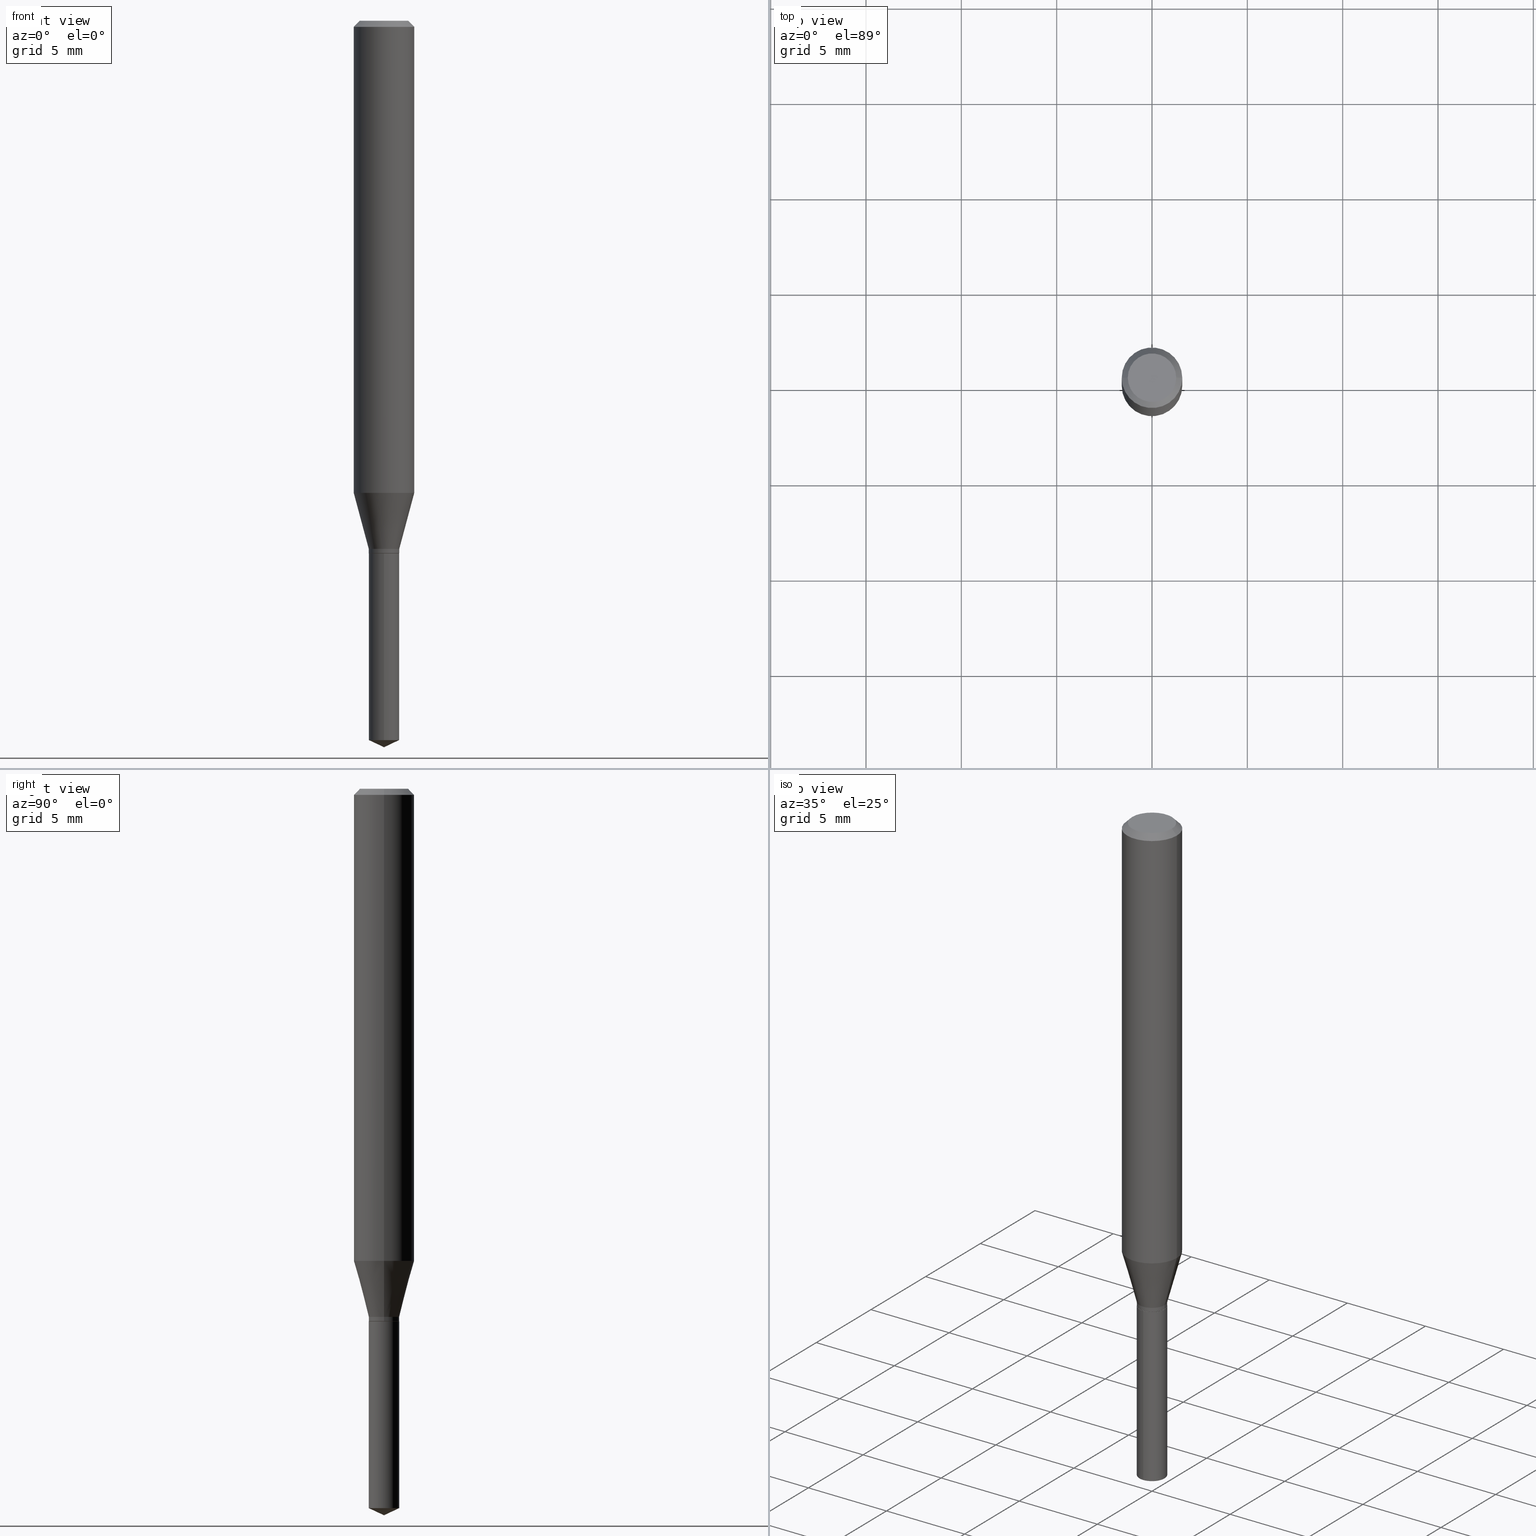
[diagram: canonical four-view strip — front | top / right | iso, engineering-drawing reading convention]
A machine part, canonical four-view strip (front | top / right | iso — engineering-drawing reading convention). The complete STEP part file that produces these views, byte-faithful:
ISO-10303-21;
HEADER;
FILE_DESCRIPTION (( 'STEP AP203' ),
    '1' );
FILE_NAME ('07342.STEP',
    '2024-04-23T20:35:25',
    ( '' ),
    ( '' ),
    'SwSTEP 2.0',
    'SolidWorks 2023',
    '' );
FILE_SCHEMA (( 'CONFIG_CONTROL_DESIGN' ));
ENDSEC;

DATA;
#1 = EDGE_CURVE ( 'NONE', #366, #151, #197, .T. ) ;
#2 = LINE ( 'NONE', #8, #445 ) ;
#3 = ORIENTED_EDGE ( 'NONE', *, *, #455, .F. ) ;
#4 = VECTOR ( 'NONE', #240, 39.37007874015748854 ) ;
#5 = AXIS2_PLACEMENT_3D ( 'NONE', #487, #407, #261 ) ;
#6 = DIRECTION ( 'NONE',  ( -2.445468806185136597E-29, 3.491481338843145583E-15, 1.000000000000000000 ) ) ;
#7 = ORIENTED_EDGE ( 'NONE', *, *, #394, .T. ) ;
#8 = CARTESIAN_POINT ( 'NONE',  ( -2.199633243470904924E-16, -0.03150000000000384437, -1.099999999999999867 ) ) ;
#9 = VERTEX_POINT ( 'NONE', #385 ) ;
#10 = ORIENTED_EDGE ( 'NONE', *, *, #463, .F. ) ;
#11 = CONICAL_SURFACE ( 'NONE', #159, 0.06250000000000000000, 0.7853981633974449483 ) ;
#12 = CONICAL_SURFACE ( 'NONE', #13, 0.03099999999999999978, 0.7853981633974141952 ) ;
#13 = AXIS2_PLACEMENT_3D ( 'NONE', #34, #118, #300 ) ;
#14 = DIRECTION ( 'NONE',  ( 1.000000000000000000, -6.982962677686267499E-15, 4.876176775795936353E-29 ) ) ;
#15 = CYLINDRICAL_SURFACE ( 'NONE', #94, 0.03150000000000000022 ) ;
#16 = ORIENTED_EDGE ( 'NONE', *, *, #1, .F. ) ;
#17 = FACE_OUTER_BOUND ( 'NONE', #292, .T. ) ;
#18 = CC_DESIGN_APPROVAL ( #111, ( #373 ) ) ;
#19 = DIRECTION ( 'NONE',  ( 1.000000000000000000, 0.000000000000000000, 0.000000000000000000 ) ) ;
#20 = FACE_OUTER_BOUND ( 'NONE', #270, .T. ) ;
#21 = CARTESIAN_POINT ( 'NONE',  ( 3.668099535622682155E-29, -5.237370474839448718E-15, -1.500000000000000222 ) ) ;
#22 = CC_DESIGN_PERSON_AND_ORGANIZATION_ASSIGNMENT ( #26, #437, ( #288 ) ) ;
#23 = LINE ( 'NONE', #468, #342 ) ;
#24 = FACE_OUTER_BOUND ( 'NONE', #339, .T. ) ;
#25 = AXIS2_PLACEMENT_3D ( 'NONE', #187, #360, #181 ) ;
#26 = PERSON_AND_ORGANIZATION ( #417, #232 ) ;
#27 = CARTESIAN_POINT ( 'NONE',  ( 3.056836007731442729E-31, -4.364351673553962300E-17, -0.01250000000000008916 ) ) ;
#28 = VERTEX_POINT ( 'NONE', #418 ) ;
#29 = CALENDAR_DATE ( 2024, 23, 4 ) ;
#30 = CARTESIAN_POINT ( 'NONE',  ( 0.06250000000000000000, -4.800786840909313294E-16, -0.01250000000000008916 ) ) ;
#31 = FACE_OUTER_BOUND ( 'NONE', #368, .T. ) ;
#32 = EDGE_LOOP ( 'NONE', ( #46, #255, #442, #444 ) ) ;
#33 = APPROVAL_PERSON_ORGANIZATION ( #100, #450, #323 ) ;
#34 = CARTESIAN_POINT ( 'NONE',  ( 2.690015686803650369E-29, -3.840629472727460101E-15, -1.100000000000000089 ) ) ;
#35 = EDGE_LOOP ( 'NONE', ( #266, #415, #7, #48 ) ) ;
#36 = ADVANCED_FACE ( 'NONE', ( #461 ), #163, .T. ) ;
#37 = CARTESIAN_POINT ( 'NONE',  ( -0.04999999999999999584, 3.709698922520826725E-16, -1.592040838894077649E-18 ) ) ;
#38 = VERTEX_POINT ( 'NONE', #303 ) ;
#39 = ADVANCED_FACE ( 'NONE', ( #306 ), #202, .T. ) ;
#40 = DIRECTION ( 'NONE',  ( 1.000000000000000000, -6.982962677686270655E-15, 0.000000000000000000 ) ) ;
#41 = ORIENTED_EDGE ( 'NONE', *, *, #316, .F. ) ;
#42 = LOCAL_TIME ( 16, 35, 25.00000000000000000, #470 ) ;
#43 = CARTESIAN_POINT ( 'NONE',  ( 0.06250000000000005551, -4.364351673553921131E-16, 3.047610484872463023E-30 ) ) ;
#44 = ORIENTED_EDGE ( 'NONE', *, *, #463, .T. ) ;
#45 = DATE_TIME_ROLE ( 'creation_date' ) ;
#46 = ORIENTED_EDGE ( 'NONE', *, *, #371, .F. ) ;
#47 = PERSON_AND_ORGANIZATION_ROLE ( 'design_owner' ) ;
#48 = ORIENTED_EDGE ( 'NONE', *, *, #174, .F. ) ;
#49 = CIRCLE ( 'NONE', #144, 0.06250000000000012490 ) ;
#50 = VERTEX_POINT ( 'NONE', #462 ) ;
#51 = ADVANCED_FACE ( 'NONE', ( #84 ), #198, .F. ) ;
#52 = ORIENTED_EDGE ( 'NONE', *, *, #482, .T. ) ;
#53 = CC_DESIGN_PERSON_AND_ORGANIZATION_ASSIGNMENT ( #165, #133, ( #413 ) ) ;
#54 = DIRECTION ( 'NONE',  ( -2.445468806185136597E-29, 3.491481338843145583E-15, 1.000000000000000000 ) ) ;
#55 = CARTESIAN_POINT ( 'NONE',  ( -0.03150000000000000022, -3.599351104268813703E-15, -1.099499999999999922 ) ) ;
#56 = CIRCLE ( 'NONE', #182, 0.06250000000000000000 ) ;
#57 = DIRECTION ( 'NONE',  ( 1.000000000000000000, -6.982962677686266711E-15, 0.000000000000000000 ) ) ;
#58 = MANIFOLD_SOLID_BREP ( 'Body-Move/Copy2[1]', #396 ) ;
#59 = CARTESIAN_POINT ( 'NONE',  ( 2.690015686803650369E-29, -3.840629472727460101E-15, -1.100000000000000089 ) ) ;
#60 = APPROVAL_ROLE ( '' ) ;
#61 = CARTESIAN_POINT ( 'NONE',  ( 0.000000000000000000, 0.000000000000000000, 0.000000000000000000 ) ) ;
#62 = DIRECTION ( 'NONE',  ( -2.445399690415121530E-29, 3.491580316559632610E-15, 1.000000000000000000 ) ) ;
#63 = AXIS2_PLACEMENT_3D ( 'NONE', #98, #395, #435 ) ;
#64 = VECTOR ( 'NONE', #369, 39.37007874015748143 ) ;
#65 = ADVANCED_FACE ( 'NONE', ( #420 ), #485, .T. ) ;
#66 = CARTESIAN_POINT ( 'NONE',  ( -0.03150000000000000022, -3.599351104268813703E-15, -1.090500000000000247 ) ) ;
#67 = APPROVAL_DATE_TIME ( #213, #450 ) ;
#68 = FACE_OUTER_BOUND ( 'NONE', #488, .T. ) ;
#69 = DIRECTION ( 'NONE',  ( -2.445399690415121530E-29, 3.491580316559632610E-15, 1.000000000000000000 ) ) ;
#70 = EDGE_CURVE ( 'NONE', #74, #50, #271, .T. ) ;
#71 = ORIENTED_EDGE ( 'NONE', *, *, #307, .F. ) ;
#72 = AXIS2_PLACEMENT_3D ( 'NONE', #402, #69, #372 ) ;
#73 = DIRECTION ( 'NONE',  ( 1.000000000000000000, -6.982962677686270655E-15, 0.000000000000000000 ) ) ;
#74 = VERTEX_POINT ( 'NONE', #129 ) ;
#75 = ADVANCED_FACE ( 'NONE', ( #419 ), #15, .T. ) ;
#76 = CARTESIAN_POINT ( 'NONE',  ( 3.056836007731442729E-31, -4.364351673553962300E-17, -0.01250000000000008916 ) ) ;
#77 = ORIENTED_EDGE ( 'NONE', *, *, #85, .T. ) ;
#78 = CARTESIAN_POINT ( 'NONE',  ( 3.893286209682126177E-47, -5.558580879666067980E-33, -1.592040838891559689E-18 ) ) ;
#79 = ORIENTED_EDGE ( 'NONE', *, *, #174, .T. ) ;
#80 = EDGE_CURVE ( 'NONE', #238, #28, #427, .T. ) ;
#81 = VECTOR ( 'NONE', #135, 39.37007874015748143 ) ;
#82 = APPROVAL_STATUS ( 'not_yet_approved' ) ;
#83 = EDGE_LOOP ( 'NONE', ( #299, #86, #454 ) ) ;
#84 = FACE_OUTER_BOUND ( 'NONE', #117, .T. ) ;
#85 = EDGE_CURVE ( 'NONE', #154, #151, #87, .T. ) ;
#86 = ORIENTED_EDGE ( 'NONE', *, *, #70, .T. ) ;
#87 = CIRCLE ( 'NONE', #166, 0.03150000000000000022 ) ;
#88 = DIRECTION ( 'NONE',  ( 1.000000000000000000, -6.982962677686265922E-15, 4.876176775795936353E-29 ) ) ;
#89 = CC_DESIGN_PERSON_AND_ORGANIZATION_ASSIGNMENT ( #475, #179, ( #373 ) ) ;
#90 = DIRECTION ( 'NONE',  ( 1.000000000000000000, -6.982962677686265922E-15, 4.876176775795936353E-29 ) ) ;
#91 = EDGE_LOOP ( 'NONE', ( #107, #110, #448, #260 ) ) ;
#92 = PERSON_AND_ORGANIZATION ( #417, #232 ) ;
#93 = ADVANCED_FACE ( 'NONE', ( #17 ), #11, .T. ) ;
#94 = AXIS2_PLACEMENT_3D ( 'NONE', #131, #203, #90 ) ;
#95 = FACE_OUTER_BOUND ( 'NONE', #190, .T. ) ;
#96 = LOCAL_TIME ( 16, 35, 25.00000000000000000, #434 ) ;
#97 = CALENDAR_DATE ( 2024, 23, 4 ) ;
#98 = CARTESIAN_POINT ( 'NONE',  ( 3.893286209682126177E-47, -5.558580879666067980E-33, -1.592040838891559689E-18 ) ) ;
#99 = DIRECTION ( 'NONE',  ( -6.982962677686266711E-15, -1.000000000000000000, 3.520397390770453475E-15 ) ) ;
#100 = PERSON_AND_ORGANIZATION ( #417, #232 ) ;
#101 = LINE ( 'NONE', #359, #287 ) ;
#102 = ADVANCED_BREP_SHAPE_REPRESENTATION ( '07342', ( #58, #347, #192 ), #348 ) ;
#103 = ORIENTED_EDGE ( 'NONE', *, *, #227, .F. ) ;
#104 = CIRCLE ( 'NONE', #430, 0.03150000000000000022 ) ;
#105 = CC_DESIGN_DATE_AND_TIME_ASSIGNMENT ( #252, #399, ( #288 ) ) ;
#106 = CARTESIAN_POINT ( 'NONE',  ( 2.238209617644679463E-16, 0.03149999999999615607, -1.100000000000000089 ) ) ;
#107 = ORIENTED_EDGE ( 'NONE', *, *, #471, .F. ) ;
#108 = EDGE_CURVE ( 'NONE', #28, #366, #285, .T. ) ;
#109 = CARTESIAN_POINT ( 'NONE',  ( -0.03150000000000000022, 2.238209617644315601E-16, -1.549464553430295327E-30 ) ) ;
#110 = ORIENTED_EDGE ( 'NONE', *, *, #80, .T. ) ;
#111 = APPROVAL ( #338, 'UNSPECIFIED' ) ;
#112 = DIRECTION ( 'NONE',  ( -2.445468806185136597E-29, 3.491481338843145583E-15, 1.000000000000000000 ) ) ;
#113 = ORIENTED_EDGE ( 'NONE', *, *, #361, .T. ) ;
#114 = CIRCLE ( 'NONE', #333, 0.03150000000000000022 ) ;
#115 = VECTOR ( 'NONE', #367, 39.37007874015748143 ) ;
#116 = LINE ( 'NONE', #43, #64 ) ;
#117 = EDGE_LOOP ( 'NONE', ( #41, #223 ) ) ;
#118 = DIRECTION ( 'NONE',  ( -2.445468806185136597E-29, 3.491481338843145583E-15, 1.000000000000000000 ) ) ;
#119 = ORIENTED_EDGE ( 'NONE', *, *, #125, .T. ) ;
#120 = CARTESIAN_POINT ( 'NONE',  ( 1.946643104841063088E-47, -2.779290439833033990E-33, -7.960204194457798443E-19 ) ) ;
#121 = VERTEX_POINT ( 'NONE', #30 ) ;
#122 = CONICAL_SURFACE ( 'NONE', #334, 0.03150000000000000022, 0.2617993877991499074 ) ;
#123 = CALENDAR_DATE ( 2024, 23, 4 ) ;
#124 = DIRECTION ( 'NONE',  ( -2.445468806185136597E-29, 3.491481338843145583E-15, 1.000000000000000000 ) ) ;
#125 = EDGE_CURVE ( 'NONE', #379, #9, #473, .T. ) ;
#126 = DIRECTION ( 'NONE',  ( -2.445468806185136597E-29, 3.491481338843145583E-15, 1.000000000000000000 ) ) ;
#127 = ORIENTED_EDGE ( 'NONE', *, *, #431, .T. ) ;
#128 = AXIS2_PLACEMENT_3D ( 'NONE', #247, #62, #99 ) ;
#129 = CARTESIAN_POINT ( 'NONE',  ( 3.668099535622682715E-29, -5.237370474839449507E-15, -1.500000000000000222 ) ) ;
#130 = FACE_OUTER_BOUND ( 'NONE', #186, .T. ) ;
#131 = CARTESIAN_POINT ( 'NONE',  ( 0.000000000000000000, 0.000000000000000000, 0.000000000000000000 ) ) ;
#132 = EDGE_CURVE ( 'NONE', #74, #335, #141, .T. ) ;
#133 = PERSON_AND_ORGANIZATION_ROLE ( 'creator' ) ;
#134 = DIRECTION ( 'NONE',  ( -6.982962677686265922E-15, -1.000000000000000000, 4.336266656609941617E-15 ) ) ;
#135 = DIRECTION ( 'NONE',  ( 0.7071067811865451302, -7.319954787623248157E-15, -0.7071067811865499042 ) ) ;
#136 = SHAPE_DEFINITION_REPRESENTATION ( #357, #102 ) ;
#137 = ADVANCED_FACE ( 'NONE', ( #95 ), #258, .T. ) ;
#138 = DIRECTION ( 'NONE',  ( 0.7071067811865232589, -2.468850131082003836E-15, 0.7071067811865715536 ) ) ;
#139 = DIRECTION ( 'NONE',  ( 2.445468806185136597E-29, -3.491481338843145583E-15, -1.000000000000000000 ) ) ;
#140 = EDGE_CURVE ( 'NONE', #183, #408, #362, .T. ) ;
#141 = LINE ( 'NONE', #21, #191 ) ;
#142 = CIRCLE ( 'NONE', #405, 0.06250000000000000000 ) ;
#143 = ORIENTED_EDGE ( 'NONE', *, *, #302, .T. ) ;
#144 = AXIS2_PLACEMENT_3D ( 'NONE', #253, #6, #325 ) ;
#145 = PERSON_AND_ORGANIZATION ( #417, #232 ) ;
#146 = DIRECTION ( 'NONE',  ( -2.445468806185136597E-29, 3.491481338843145583E-15, 1.000000000000000000 ) ) ;
#147 = ORIENTED_EDGE ( 'NONE', *, *, #125, .F. ) ;
#148 = DIRECTION ( 'NONE',  ( 2.445468806185136597E-29, -3.491481338843145583E-15, -1.000000000000000000 ) ) ;
#149 = ORIENTED_EDGE ( 'NONE', *, *, #431, .F. ) ;
#150 = CARTESIAN_POINT ( 'NONE',  ( -2.199633243470810507E-16, -0.03150000000000519051, -1.485311308768117788 ) ) ;
#151 = VERTEX_POINT ( 'NONE', #472 ) ;
#152 = VECTOR ( 'NONE', #352, 39.37007874015748854 ) ;
#153 = CARTESIAN_POINT ( 'NONE',  ( 2.666783733144892185E-29, -3.807460400008450745E-15, -1.090500000000000247 ) ) ;
#154 = VERTEX_POINT ( 'NONE', #66 ) ;
#155 = DIRECTION ( 'NONE',  ( 1.000000000000000000, -6.982962677686270655E-15, 0.000000000000000000 ) ) ;
#156 = ORIENTED_EDGE ( 'NONE', *, *, #210, .F. ) ;
#157 = APPROVAL_ROLE ( '' ) ;
#158 = CARTESIAN_POINT ( 'NONE',  ( 0.03150000000000000022, -2.199633243471173876E-16, 1.535995684375719887E-30 ) ) ;
#159 = AXIS2_PLACEMENT_3D ( 'NONE', #27, #139, #207 ) ;
#160 = CIRCLE ( 'NONE', #319, 0.03150000000000000022 ) ;
#161 = CC_DESIGN_APPROVAL ( #450, ( #288 ) ) ;
#162 = DIRECTION ( 'NONE',  ( -2.445468806185136597E-29, 3.491481338843145583E-15, 1.000000000000000000 ) ) ;
#163 = CYLINDRICAL_SURFACE ( 'NONE', #388, 0.06250000000000005551 ) ;
#164 = CARTESIAN_POINT ( 'NONE',  ( 0.000000000000000000, 0.000000000000000000, 0.000000000000000000 ) ) ;
#165 = PERSON_AND_ORGANIZATION ( #417, #232 ) ;
#166 = AXIS2_PLACEMENT_3D ( 'NONE', #204, #162, #346 ) ;
#167 = AXIS2_PLACEMENT_3D ( 'NONE', #332, #401, #40 ) ;
#168 = EDGE_CURVE ( 'NONE', #408, #183, #160, .T. ) ;
#169 = DIRECTION ( 'NONE',  ( -2.438088387897960049E-29, 3.491481338843145188E-15, 1.000000000000000000 ) ) ;
#170 = DIRECTION ( 'NONE',  ( -2.445468806185136597E-29, 3.491481338843145583E-15, 1.000000000000000000 ) ) ;
#171 = CALENDAR_DATE ( 2024, 23, 4 ) ;
#172 = DIRECTION ( 'NONE',  ( -2.445468806185136877E-29, 3.491481338843145188E-15, 1.000000000000000000 ) ) ;
#173 = DIRECTION ( 'NONE',  ( 2.438088387897960049E-29, -3.491481338843145188E-15, -1.000000000000000000 ) ) ;
#174 = EDGE_CURVE ( 'NONE', #251, #121, #142, .T. ) ;
#175 = AXIS2_PLACEMENT_3D ( 'NONE', #356, #479, #393 ) ;
#176 = AXIS2_PLACEMENT_3D ( 'NONE', #61, #212, #353 ) ;
#177 = DIRECTION ( 'NONE',  ( -2.445468806185136597E-29, 3.491481338843145583E-15, 1.000000000000000000 ) ) ;
#178 = DIRECTION ( 'NONE',  ( -2.445399690415121530E-29, 3.491580316559632610E-15, 1.000000000000000000 ) ) ;
#179 = PERSON_AND_ORGANIZATION_ROLE ( 'creator' ) ;
#180 = CARTESIAN_POINT ( 'NONE',  ( 3.056836007731442729E-31, -4.364351673553962300E-17, -0.01250000000000008916 ) ) ;
#181 = DIRECTION ( 'NONE',  ( 1.000000000000000000, -6.982962677686270655E-15, 0.000000000000000000 ) ) ;
#182 = AXIS2_PLACEMENT_3D ( 'NONE', #279, #170, #57 ) ;
#183 = VERTEX_POINT ( 'NONE', #478 ) ;
#184 = LOCAL_TIME ( 16, 35, 25.00000000000000000, #456 ) ;
#185 = LINE ( 'NONE', #235, #465 ) ;
#186 = EDGE_LOOP ( 'NONE', ( #119, #231 ) ) ;
#187 = CARTESIAN_POINT ( 'NONE',  ( 2.688792952400557567E-29, -3.838883732058038598E-15, -1.099499999999999922 ) ) ;
#188 = ORIENTED_EDGE ( 'NONE', *, *, #168, .T. ) ;
#189 = CARTESIAN_POINT ( 'NONE',  ( -0.06250000000000000000, 3.927916506198520587E-16, -0.01250000000000008916 ) ) ;
#190 = EDGE_LOOP ( 'NONE', ( #234, #297, #229 ) ) ;
#191 = VECTOR ( 'NONE', #391, 39.37007874015748143 ) ;
#192 = AXIS2_PLACEMENT_3D ( 'NONE', #377, #350, #19 ) ;
#193 = FACE_OUTER_BOUND ( 'NONE', #91, .T. ) ;
#194 = EDGE_CURVE ( 'NONE', #50, #335, #114, .T. ) ;
#195 = VERTEX_POINT ( 'NONE', #320 ) ;
#196 = PERSON_AND_ORGANIZATION ( #417, #232 ) ;
#197 = LINE ( 'NONE', #158, #214 ) ;
#198 = PLANE ( 'NONE',  #304 ) ;
#199 = EDGE_CURVE ( 'NONE', #50, #408, #101, .T. ) ;
#200 = CLOSED_SHELL ( 'NONE', ( #65, #286, #278, #447, #75, #39, #354, #36, #93, #476, #51, #343 ) ) ;
#201 = CIRCLE ( 'NONE', #296, 0.03099999999999999978 ) ;
#202 = CYLINDRICAL_SURFACE ( 'NONE', #457, 0.03150000000000000022 ) ;
#203 = DIRECTION ( 'NONE',  ( -2.445468806185136597E-29, 3.491481338843145583E-15, 1.000000000000000000 ) ) ;
#204 = CARTESIAN_POINT ( 'NONE',  ( 2.666783733144892185E-29, -3.807460400008450745E-15, -1.090500000000000247 ) ) ;
#205 = LENGTH_MEASURE_WITH_UNIT ( LENGTH_MEASURE( 0.02539999999999999897 ), #244 );
#206 = APPROVAL_PERSON_ORGANIZATION ( #208, #236, #60 ) ;
#207 = DIRECTION ( 'NONE',  ( -1.000000000000000000, 6.982962677686266711E-15, 0.000000000000000000 ) ) ;
#208 = PERSON_AND_ORGANIZATION ( #417, #232 ) ;
#209 = CARTESIAN_POINT ( 'NONE',  ( -0.03099999999999999978, -3.617711997467717647E-15, -1.100000000000000089 ) ) ;
#210 = EDGE_CURVE ( 'NONE', #9, #121, #481, .T. ) ;
#211 = DATE_AND_TIME ( #97, #42 ) ;
#212 = DIRECTION ( 'NONE',  ( -2.445468806185136597E-29, 3.491481338843145583E-15, 1.000000000000000000 ) ) ;
#213 = DATE_AND_TIME ( #283, #363 ) ;
#214 = VECTOR ( 'NONE', #276, 39.37007874015748143 ) ;
#215 = CARTESIAN_POINT ( 'NONE',  ( 0.06250000000000000000, -4.724246415962603826E-16, -0.01250000000000008916 ) ) ;
#216 = ORIENTED_EDGE ( 'NONE', *, *, #194, .T. ) ;
#217 = COORDINATED_UNIVERSAL_TIME_OFFSET ( 5, 0, .BEHIND. ) ;
#218 = CARTESIAN_POINT ( 'NONE',  ( 0.03099999999999999978, -4.057101315735734433E-15, -1.100000000000000089 ) ) ;
#219 = EDGE_CURVE ( 'NONE', #335, #50, #267, .T. ) ;
#220 = CARTESIAN_POINT ( 'NONE',  ( 2.666783733144892185E-29, -3.807460400008450745E-15, -1.090500000000000247 ) ) ;
#221 = CARTESIAN_POINT ( 'NONE',  ( 2.383858704321651404E-29, -3.403518441750972250E-15, -0.9748064249653647373 ) ) ;
#222 = CIRCLE ( 'NONE', #25, 0.03150000000000000022 ) ;
#223 = ORIENTED_EDGE ( 'NONE', *, *, #80, .F. ) ;
#224 = CC_DESIGN_SECURITY_CLASSIFICATION ( #288, ( #373 ) ) ;
#225 = FACE_OUTER_BOUND ( 'NONE', #376, .T. ) ;
#226 = ORIENTED_EDGE ( 'NONE', *, *, #210, .T. ) ;
#227 = EDGE_CURVE ( 'NONE', #121, #251, #56, .T. ) ;
#228 = LINE ( 'NONE', #189, #310 ) ;
#229 = ORIENTED_EDGE ( 'NONE', *, *, #194, .F. ) ;
#230 = CARTESIAN_POINT ( 'NONE',  ( 0.03150000000000000022, -4.058847056405155936E-15, -1.099499999999999922 ) ) ;
#231 = ORIENTED_EDGE ( 'NONE', *, *, #365, .T. ) ;
#232 = ORGANIZATION ( 'UNSPECIFIED', 'UNSPECIFIED', '' ) ;
#233 = COORDINATED_UNIVERSAL_TIME_OFFSET ( 5, 0, .BEHIND. ) ;
#234 = ORIENTED_EDGE ( 'NONE', *, *, #70, .F. ) ;
#235 = CARTESIAN_POINT ( 'NONE',  ( -0.03150000000000000022, -3.583639438244019382E-15, -1.090500000000000247 ) ) ;
#236 = APPROVAL ( #82, 'UNSPECIFIED' ) ;
#237 = CARTESIAN_POINT ( 'NONE',  ( 2.690015686803650369E-29, -3.840629472727460101E-15, -1.100000000000000089 ) ) ;
#238 = VERTEX_POINT ( 'NONE', #209 ) ;
#239 = CIRCLE ( 'NONE', #167, 0.03150000000000000022 ) ;
#240 = DIRECTION ( 'NONE',  ( 6.439704144417030353E-15, 0.9063077870366521571, 0.4226182617406946673 ) ) ;
#241 = CARTESIAN_POINT ( 'NONE',  ( 2.690015686803650369E-29, -3.840629472727460101E-15, -1.100000000000000089 ) ) ;
#242 =( NAMED_UNIT ( * ) PLANE_ANGLE_UNIT ( ) SI_UNIT ( $, .RADIAN. ) );
#243 = DIRECTION ( 'NONE',  ( -2.445399690415121530E-29, 3.491580316559632610E-15, 1.000000000000000000 ) ) ;
#244 =( LENGTH_UNIT ( ) NAMED_UNIT ( * ) SI_UNIT ( $, .METRE. ) );
#245 = DIRECTION ( 'NONE',  ( -6.982962677686265922E-15, -1.000000000000000000, 4.336266656609941617E-15 ) ) ;
#246 = ADVANCED_FACE ( 'NONE', ( #397 ), #355, .T. ) ;
#247 = CARTESIAN_POINT ( 'NONE',  ( -9.260740279983036507E-28, 1.322265303911854087E-13, 37.87007874015748143 ) ) ;
#248 = CARTESIAN_POINT ( 'NONE',  ( 2.690015686803650369E-29, -3.840629472727460101E-15, -1.100000000000000089 ) ) ;
#249 = LOCAL_TIME ( 16, 35, 25.00000000000000000, #233 ) ;
#250 = CARTESIAN_POINT ( 'NONE',  ( -9.260740279983036507E-28, 1.322265303911854087E-13, 37.87007874015748143 ) ) ;
#251 = VERTEX_POINT ( 'NONE', #282 ) ;
#252 = DATE_AND_TIME ( #29, #96 ) ;
#253 = CARTESIAN_POINT ( 'NONE',  ( 2.383858704321651404E-29, -3.403518441750972250E-15, -0.9748064249653647373 ) ) ;
#254 = CYLINDRICAL_SURFACE ( 'NONE', #72, 0.03150000000000000022 ) ;
#255 = ORIENTED_EDGE ( 'NONE', *, *, #452, .T. ) ;
#256 = CARTESIAN_POINT ( 'NONE',  ( 2.690015686803650369E-29, -3.840629472727460101E-15, -1.100000000000000089 ) ) ;
#257 = ADVANCED_FACE ( 'NONE', ( #20 ), #432, .T. ) ;
#258 = CONICAL_SURFACE ( 'NONE', #128, 84.42940631927434936, 1.134464013796316006 ) ;
#259 = AXIS2_PLACEMENT_3D ( 'NONE', #120, #173, #317 ) ;
#260 = ORIENTED_EDGE ( 'NONE', *, *, #452, .F. ) ;
#261 = DIRECTION ( 'NONE',  ( 6.982962677686265922E-15, 1.000000000000000000, -3.491580316559632610E-15 ) ) ;
#262 = ORIENTED_EDGE ( 'NONE', *, *, #140, .T. ) ;
#263 = DIRECTION ( 'NONE',  ( -0.7071067811865451302, 2.468850131082231817E-15, -0.7071067811865499042 ) ) ;
#264 = ORIENTED_EDGE ( 'NONE', *, *, #365, .F. ) ;
#265 = APPLICATION_PROTOCOL_DEFINITION ( 'international standard', 'config_control_design', 1994, #400 ) ;
#266 = ORIENTED_EDGE ( 'NONE', *, *, #272, .F. ) ;
#267 = CIRCLE ( 'NONE', #175, 0.03150000000000000022 ) ;
#268 = AXIS2_PLACEMENT_3D ( 'NONE', #315, #469, #134 ) ;
#269 = DATE_AND_TIME ( #123, #184 ) ;
#270 = EDGE_LOOP ( 'NONE', ( #422, #216, #143, #309 ) ) ;
#271 = LINE ( 'NONE', #277, #4 ) ;
#272 = EDGE_CURVE ( 'NONE', #195, #251, #426, .T. ) ;
#273 = DIRECTION ( 'NONE',  ( 1.000000000000000000, -6.982962677686265922E-15, 4.876176775795935793E-29 ) ) ;
#274 = VECTOR ( 'NONE', #138, 39.37007874015748854 ) ;
#275 = AXIS2_PLACEMENT_3D ( 'NONE', #153, #146, #441 ) ;
#276 = DIRECTION ( 'NONE',  ( -2.445468806185136877E-29, 3.491481338843145188E-15, 1.000000000000000000 ) ) ;
#277 = CARTESIAN_POINT ( 'NONE',  ( 3.668252923656895710E-29, -5.237152723863177100E-15, -1.500000000000000222 ) ) ;
#278 = ADVANCED_FACE ( 'NONE', ( #24 ), #318, .T. ) ;
#279 = CARTESIAN_POINT ( 'NONE',  ( 3.056836007731442729E-31, -4.364351673553962300E-17, -0.01250000000000008916 ) ) ;
#280 = APPROVAL_DATE_TIME ( #314, #236 ) ;
#281 = CONICAL_SURFACE ( 'NONE', #275, 0.03150000000000000022, 0.2617993877991499074 ) ;
#282 = CARTESIAN_POINT ( 'NONE',  ( -0.06250000000000000000, -1.279491769393191909E-15, -0.01250000000000008916 ) ) ;
#283 = CALENDAR_DATE ( 2024, 23, 4 ) ;
#284 = DIRECTION ( 'NONE',  ( -2.445399690415121810E-29, 3.491580316559632610E-15, 1.000000000000000000 ) ) ;
#285 = LINE ( 'NONE', #218, #274 ) ;
#286 = ADVANCED_FACE ( 'NONE', ( #489 ), #486, .T. ) ;
#287 = VECTOR ( 'NONE', #284, 39.37007874015748143 ) ;
#288 = SECURITY_CLASSIFICATION ( '', '', #290 ) ;
#289 = DIRECTION ( 'NONE',  ( -2.445399690415121530E-29, 3.491580316559632610E-15, 1.000000000000000000 ) ) ;
#290 = SECURITY_CLASSIFICATION_LEVEL ( 'unclassified' ) ;
#291 = DIRECTION ( 'NONE',  ( 1.000000000000000000, -6.982962677686265922E-15, 4.875957971899673662E-29 ) ) ;
#292 = EDGE_LOOP ( 'NONE', ( #156, #147, #424, #79 ) ) ;
#293 = DIRECTION ( 'NONE',  ( 1.000000000000000000, -6.982962677686270655E-15, 0.000000000000000000 ) ) ;
#294 = ORIENTED_EDGE ( 'NONE', *, *, #219, .T. ) ;
#295 = CARTESIAN_POINT ( 'NONE',  ( 2.666783733144892185E-29, -3.807460400008450745E-15, -1.090500000000000247 ) ) ;
#296 = AXIS2_PLACEMENT_3D ( 'NONE', #256, #112, #293 ) ;
#297 = ORIENTED_EDGE ( 'NONE', *, *, #132, .T. ) ;
#298 = DIRECTION ( 'NONE',  ( -2.445468806185136597E-29, 3.491481338843145583E-15, 1.000000000000000000 ) ) ;
#299 = ORIENTED_EDGE ( 'NONE', *, *, #132, .F. ) ;
#300 = DIRECTION ( 'NONE',  ( 1.000000000000000000, -6.982962677686270655E-15, 0.000000000000000000 ) ) ;
#301 = ORIENTED_EDGE ( 'NONE', *, *, #302, .F. ) ;
#302 = EDGE_CURVE ( 'NONE', #335, #183, #2, .T. ) ;
#303 = CARTESIAN_POINT ( 'NONE',  ( 0.06250000000000012490, -3.839953609106364708E-15, -0.9748064249653647373 ) ) ;
#304 = AXIS2_PLACEMENT_3D ( 'NONE', #464, #169, #273 ) ;
#305 = CIRCLE ( 'NONE', #474, 0.04999999999999999584 ) ;
#306 = FACE_OUTER_BOUND ( 'NONE', #32, .T. ) ;
#307 = EDGE_CURVE ( 'NONE', #195, #38, #49, .T. ) ;
#308 = ORIENTED_EDGE ( 'NONE', *, *, #361, .F. ) ;
#309 = ORIENTED_EDGE ( 'NONE', *, *, #168, .F. ) ;
#310 = VECTOR ( 'NONE', #263, 39.37007874015748143 ) ;
#311 = DIRECTION ( 'NONE',  ( -0.7071067811865232589, 7.493145998870265808E-15, 0.7071067811865715536 ) ) ;
#312 = EDGE_LOOP ( 'NONE', ( #127, #331, #308, #16 ) ) ;
#313 = UNCERTAINTY_MEASURE_WITH_UNIT (LENGTH_MEASURE( 1.000000000000000082E-05 ), #453, 'distance_accuracy_value', 'NONE');
#314 = DATE_AND_TIME ( #171, #249 ) ;
#315 = CARTESIAN_POINT ( 'NONE',  ( 2.690015686803650369E-29, -3.840629472727460101E-15, -1.100000000000000089 ) ) ;
#316 = EDGE_CURVE ( 'NONE', #28, #238, #201, .T. ) ;
#317 = DIRECTION ( 'NONE',  ( -1.000000000000000000, 6.982962677686265922E-15, -4.876176775795935793E-29 ) ) ;
#318 = CYLINDRICAL_SURFACE ( 'NONE', #176, 0.06250000000000005551 ) ;
#319 = AXIS2_PLACEMENT_3D ( 'NONE', #248, #243, #324 ) ;
#320 = CARTESIAN_POINT ( 'NONE',  ( -0.06250000000000012490, -2.959429231900908845E-15, -0.9748064249653647373 ) ) ;
#321 = EDGE_CURVE ( 'NONE', #379, #251, #228, .T. ) ;
#322 = DIRECTION ( 'NONE',  ( -2.445399690415121530E-29, 3.491580316559632610E-15, 1.000000000000000000 ) ) ;
#323 = APPROVAL_ROLE ( '' ) ;
#324 = DIRECTION ( 'NONE',  ( -6.982962677686265922E-15, -1.000000000000000000, 4.336266656609941617E-15 ) ) ;
#325 = DIRECTION ( 'NONE',  ( 1.000000000000000000, -6.982962677686264344E-15, 0.000000000000000000 ) ) ;
#326 = ORIENTED_EDGE ( 'NONE', *, *, #272, .T. ) ;
#327 = ADVANCED_FACE ( 'NONE', ( #411 ), #443, .F. ) ;
#328 = DIRECTION ( 'NONE',  ( -2.445468806185136597E-29, 3.491481338843145583E-15, 1.000000000000000000 ) ) ;
#329 = ORIENTED_EDGE ( 'NONE', *, *, #455, .T. ) ;
#330 = DIRECTION ( 'NONE',  ( -2.445399690415121810E-29, 3.491580316559632610E-15, 1.000000000000000000 ) ) ;
#331 = ORIENTED_EDGE ( 'NONE', *, *, #371, .T. ) ;
#332 = CARTESIAN_POINT ( 'NONE',  ( 2.688792952400557567E-29, -3.838883732058038598E-15, -1.099499999999999922 ) ) ;
#333 = AXIS2_PLACEMENT_3D ( 'NONE', #387, #322, #436 ) ;
#334 = AXIS2_PLACEMENT_3D ( 'NONE', #220, #336, #155 ) ;
#335 = VERTEX_POINT ( 'NONE', #150 ) ;
#336 = DIRECTION ( 'NONE',  ( -2.445468806185136597E-29, 3.491481338843145583E-15, 1.000000000000000000 ) ) ;
#337 = ORIENTED_EDGE ( 'NONE', *, *, #321, .F. ) ;
#338 = APPROVAL_STATUS ( 'not_yet_approved' ) ;
#339 = EDGE_LOOP ( 'NONE', ( #329, #326, #103, #380 ) ) ;
#340 = AXIS2_PLACEMENT_3D ( 'NONE', #237, #345, #344 ) ;
#341 = DIRECTION ( 'NONE',  ( 1.000000000000000000, -6.982962677686270655E-15, 0.000000000000000000 ) ) ;
#342 = VECTOR ( 'NONE', #311, 39.37007874015748854 ) ;
#343 = ADVANCED_FACE ( 'NONE', ( #193 ), #12, .T. ) ;
#344 = DIRECTION ( 'NONE',  ( 1.000000000000000000, -6.982962677686270655E-15, 0.000000000000000000 ) ) ;
#345 = DIRECTION ( 'NONE',  ( -2.445468806185136597E-29, 3.491481338843145583E-15, 1.000000000000000000 ) ) ;
#346 = DIRECTION ( 'NONE',  ( 1.000000000000000000, -6.982962677686270655E-15, 0.000000000000000000 ) ) ;
#347 = MANIFOLD_SOLID_BREP ( 'Body-Move/Copy2[2]', #200 ) ;
#348 =( GEOMETRIC_REPRESENTATION_CONTEXT ( 3 ) GLOBAL_UNCERTAINTY_ASSIGNED_CONTEXT ( ( #313 ) ) GLOBAL_UNIT_ASSIGNED_CONTEXT ( ( #453, #242, #386 ) ) REPRESENTATION_CONTEXT ( 'NONE', 'WORKASPACE' ) );
#349 = DIRECTION ( 'NONE',  ( -6.982962677686266711E-15, -1.000000000000000000, 3.520397390770453475E-15 ) ) ;
#350 = DIRECTION ( 'NONE',  ( 0.000000000000000000, 0.000000000000000000, 1.000000000000000000 ) ) ;
#351 = CARTESIAN_POINT ( 'NONE',  ( -0.06250000000000005551, 4.440892098500630106E-16, -3.074334431409318916E-30 ) ) ;
#352 = DIRECTION ( 'NONE',  ( 0.2588190451025211836, 1.565188264969622559E-15, 0.9659258262890679791 ) ) ;
#353 = DIRECTION ( 'NONE',  ( 1.000000000000000000, -6.982962677686267499E-15, 4.876176775795936353E-29 ) ) ;
#354 = ADVANCED_FACE ( 'NONE', ( #31 ), #281, .T. ) ;
#355 = CONICAL_SURFACE ( 'NONE', #421, 84.42940631927434936, 1.134464013796316006 ) ;
#356 = CARTESIAN_POINT ( 'NONE',  ( 3.632255841978650681E-29, -5.185974854170051324E-15, -1.485311308768117788 ) ) ;
#357 = PRODUCT_DEFINITION_SHAPE ( 'NONE', 'NONE',  #413 ) ;
#358 = PRODUCT_RELATED_PRODUCT_CATEGORY ( 'detail', '', ( #403 ) ) ;
#359 = CARTESIAN_POINT ( 'NONE',  ( 2.238209617644584307E-16, 0.03149999999999615607, -1.100000000000000089 ) ) ;
#360 = DIRECTION ( 'NONE',  ( -2.445468806185136597E-29, 3.491481338843145583E-15, 1.000000000000000000 ) ) ;
#361 = EDGE_CURVE ( 'NONE', #151, #154, #104, .T. ) ;
#362 = CIRCLE ( 'NONE', #438, 0.03150000000000000022 ) ;
#363 = LOCAL_TIME ( 16, 35, 25.00000000000000000, #217 ) ;
#364 = DIRECTION ( 'NONE',  ( 1.000000000000000000, -6.982962677686264344E-15, 0.000000000000000000 ) ) ;
#365 = EDGE_CURVE ( 'NONE', #9, #379, #305, .T. ) ;
#366 = VERTEX_POINT ( 'NONE', #230 ) ;
#367 = DIRECTION ( 'NONE',  ( -2.445468806185136877E-29, 3.491481338843145188E-15, 1.000000000000000000 ) ) ;
#368 = EDGE_LOOP ( 'NONE', ( #10, #77, #52, #71 ) ) ;
#369 = DIRECTION ( 'NONE',  ( -2.445468806185136877E-29, 3.491481338843145188E-15, 1.000000000000000000 ) ) ;
#370 = EDGE_LOOP ( 'NONE', ( #264, #226, #374, #337 ) ) ;
#371 = EDGE_CURVE ( 'NONE', #483, #154, #449, .T. ) ;
#372 = DIRECTION ( 'NONE',  ( -6.982962677686265922E-15, -1.000000000000000000, 4.336266656609941617E-15 ) ) ;
#373 = PRODUCT_DEFINITION_FORMATION_WITH_SPECIFIED_SOURCE ( 'ANY', '', #403, .NOT_KNOWN. ) ;
#374 = ORIENTED_EDGE ( 'NONE', *, *, #227, .T. ) ;
#375 = PLANE ( 'NONE',  #259 ) ;
#376 = EDGE_LOOP ( 'NONE', ( #294, #384, #398, #301 ) ) ;
#377 = CARTESIAN_POINT ( 'NONE',  ( 0.000000000000000000, 0.000000000000000000, 0.000000000000000000 ) ) ;
#378 = ADVANCED_FACE ( 'NONE', ( #225 ), #254, .T. ) ;
#379 = VERTEX_POINT ( 'NONE', #37 ) ;
#380 = ORIENTED_EDGE ( 'NONE', *, *, #394, .F. ) ;
#381 = DESIGN_CONTEXT ( 'detailed design', #433, 'design' ) ;
#382 = VECTOR ( 'NONE', #172, 39.37007874015748143 ) ;
#383 = CC_DESIGN_DATE_AND_TIME_ASSIGNMENT ( #211, #45, ( #413 ) ) ;
#384 = ORIENTED_EDGE ( 'NONE', *, *, #199, .T. ) ;
#385 = CARTESIAN_POINT ( 'NONE',  ( 0.04999999999999999584, -4.077247707424184705E-16, -1.592040838888913461E-18 ) ) ;
#386 =( NAMED_UNIT ( * ) SI_UNIT ( $, .STERADIAN. ) SOLID_ANGLE_UNIT ( ) );
#387 = CARTESIAN_POINT ( 'NONE',  ( 3.632255841978650681E-29, -5.185974854170051324E-15, -1.485311308768117788 ) ) ;
#388 = AXIS2_PLACEMENT_3D ( 'NONE', #164, #124, #14 ) ;
#389 = CC_DESIGN_APPROVAL ( #236, ( #413 ) ) ;
#390 = CARTESIAN_POINT ( 'NONE',  ( 0.03150000000000000022, -4.027423724355568083E-15, -1.090500000000000247 ) ) ;
#391 = DIRECTION ( 'NONE',  ( -6.328713451373374901E-15, -0.9063077870366492705, 0.4226182617407009956 ) ) ;
#392 = APPLICATION_PROTOCOL_DEFINITION ( 'international standard', 'config_control_design', 1994, #433 ) ;
#393 = DIRECTION ( 'NONE',  ( -6.982962677686265922E-15, -1.000000000000000000, 0.000000000000000000 ) ) ;
#394 = EDGE_CURVE ( 'NONE', #38, #121, #116, .T. ) ;
#395 = DIRECTION ( 'NONE',  ( -2.445468806185136597E-29, 3.491481338843145583E-15, 1.000000000000000000 ) ) ;
#396 = CLOSED_SHELL ( 'NONE', ( #378, #246, #137, #257, #327 ) ) ;
#397 = FACE_OUTER_BOUND ( 'NONE', #83, .T. ) ;
#398 = ORIENTED_EDGE ( 'NONE', *, *, #140, .F. ) ;
#399 = DATE_TIME_ROLE ( 'classification_date' ) ;
#400 = APPLICATION_CONTEXT ( 'configuration controlled 3d designs of mechanical parts and assemblies' ) ;
#401 = DIRECTION ( 'NONE',  ( -2.445468806185136597E-29, 3.491481338843145583E-15, 1.000000000000000000 ) ) ;
#402 = CARTESIAN_POINT ( 'NONE',  ( 2.690015686803650369E-29, -3.840629472727460101E-15, -1.100000000000000089 ) ) ;
#403 = PRODUCT ( '07342', '07342', '', ( #425 ) ) ;
#404 = EDGE_LOOP ( 'NONE', ( #262, #188 ) ) ;
#405 = AXIS2_PLACEMENT_3D ( 'NONE', #180, #177, #440 ) ;
#406 = AXIS2_PLACEMENT_3D ( 'NONE', #76, #148, #409 ) ;
#407 = DIRECTION ( 'NONE',  ( 2.445399690415121250E-29, -3.491580316559632610E-15, -1.000000000000000000 ) ) ;
#408 = VERTEX_POINT ( 'NONE', #106 ) ;
#409 = DIRECTION ( 'NONE',  ( -1.000000000000000000, 6.982962677686266711E-15, 0.000000000000000000 ) ) ;
#410 = ORIENTED_EDGE ( 'NONE', *, *, #108, .F. ) ;
#411 = FACE_OUTER_BOUND ( 'NONE', #404, .T. ) ;
#412 = ORIENTED_EDGE ( 'NONE', *, *, #471, .T. ) ;
#413 = PRODUCT_DEFINITION ( 'UNKNOWN', '', #373, #381 ) ;
#414 = AXIS2_PLACEMENT_3D ( 'NONE', #221, #328, #364 ) ;
#415 = ORIENTED_EDGE ( 'NONE', *, *, #307, .T. ) ;
#416 = APPROVAL_DATE_TIME ( #269, #111 ) ;
#417 = PERSON ( 'UNSPECIFIED', 'UNSPECIFIED', 'UNSPECIFIED', ('UNSPECIFIED'), ('UNSPECIFIED'), ('UNSPECIFIED') ) ;
#418 = CARTESIAN_POINT ( 'NONE',  ( 0.03099999999999999978, -4.057101315735734433E-15, -1.100000000000000089 ) ) ;
#419 = FACE_OUTER_BOUND ( 'NONE', #312, .T. ) ;
#420 = FACE_OUTER_BOUND ( 'NONE', #451, .T. ) ;
#421 = AXIS2_PLACEMENT_3D ( 'NONE', #250, #289, #349 ) ;
#422 = ORIENTED_EDGE ( 'NONE', *, *, #199, .F. ) ;
#423 = LINE ( 'NONE', #390, #152 ) ;
#424 = ORIENTED_EDGE ( 'NONE', *, *, #321, .T. ) ;
#425 = MECHANICAL_CONTEXT ( 'NONE', #400, 'mechanical' ) ;
#426 = LINE ( 'NONE', #351, #382 ) ;
#427 = CIRCLE ( 'NONE', #429, 0.03099999999999999978 ) ;
#428 = DIMENSIONAL_EXPONENTS ( 1.000000000000000000, 0.000000000000000000, 0.000000000000000000, 0.000000000000000000, 0.000000000000000000, 0.000000000000000000, 0.000000000000000000 ) ;
#429 = AXIS2_PLACEMENT_3D ( 'NONE', #241, #54, #341 ) ;
#430 = AXIS2_PLACEMENT_3D ( 'NONE', #295, #446, #73 ) ;
#431 = EDGE_CURVE ( 'NONE', #366, #483, #239, .T. ) ;
#432 = CYLINDRICAL_SURFACE ( 'NONE', #268, 0.03150000000000000022 ) ;
#433 = APPLICATION_CONTEXT ( 'configuration controlled 3d designs of mechanical parts and assemblies' ) ;
#434 = COORDINATED_UNIVERSAL_TIME_OFFSET ( 5, 0, .BEHIND. ) ;
#435 = DIRECTION ( 'NONE',  ( 1.000000000000000000, -6.982962677686265922E-15, 4.875957971899673662E-29 ) ) ;
#436 = DIRECTION ( 'NONE',  ( -6.982962677686265922E-15, -1.000000000000000000, 0.000000000000000000 ) ) ;
#437 = PERSON_AND_ORGANIZATION_ROLE ( 'classification_officer' ) ;
#438 = AXIS2_PLACEMENT_3D ( 'NONE', #59, #178, #245 ) ;
#439 = APPROVAL_PERSON_ORGANIZATION ( #196, #111, #157 ) ;
#440 = DIRECTION ( 'NONE',  ( 1.000000000000000000, -6.982962677686266711E-15, 0.000000000000000000 ) ) ;
#441 = DIRECTION ( 'NONE',  ( 1.000000000000000000, -6.982962677686270655E-15, 0.000000000000000000 ) ) ;
#442 = ORIENTED_EDGE ( 'NONE', *, *, #1, .T. ) ;
#443 = PLANE ( 'NONE',  #5 ) ;
#444 = ORIENTED_EDGE ( 'NONE', *, *, #85, .F. ) ;
#445 = VECTOR ( 'NONE', #330, 39.37007874015748143 ) ;
#446 = DIRECTION ( 'NONE',  ( -2.445468806185136597E-29, 3.491481338843145583E-15, 1.000000000000000000 ) ) ;
#447 = ADVANCED_FACE ( 'NONE', ( #68 ), #122, .T. ) ;
#448 = ORIENTED_EDGE ( 'NONE', *, *, #108, .T. ) ;
#449 = LINE ( 'NONE', #109, #115 ) ;
#450 = APPROVAL ( #480, 'UNSPECIFIED' ) ;
#451 = EDGE_LOOP ( 'NONE', ( #490, #412, #149, #410 ) ) ;
#452 = EDGE_CURVE ( 'NONE', #483, #366, #222, .T. ) ;
#453 =( CONVERSION_BASED_UNIT ( 'INCH', #205 ) LENGTH_UNIT ( ) NAMED_UNIT ( #428 ) );
#454 = ORIENTED_EDGE ( 'NONE', *, *, #219, .F. ) ;
#455 = EDGE_CURVE ( 'NONE', #38, #195, #458, .T. ) ;
#456 = COORDINATED_UNIVERSAL_TIME_OFFSET ( 5, 0, .BEHIND. ) ;
#457 = AXIS2_PLACEMENT_3D ( 'NONE', #467, #126, #88 ) ;
#458 = CIRCLE ( 'NONE', #414, 0.06250000000000012490 ) ;
#459 = ORIENTED_EDGE ( 'NONE', *, *, #482, .F. ) ;
#460 = CC_DESIGN_PERSON_AND_ORGANIZATION_ASSIGNMENT ( #145, #484, ( #373 ) ) ;
#461 = FACE_OUTER_BOUND ( 'NONE', #35, .T. ) ;
#462 = CARTESIAN_POINT ( 'NONE',  ( 2.238209617644678970E-16, 0.03149999999999481687, -1.485311308768117788 ) ) ;
#463 = EDGE_CURVE ( 'NONE', #154, #195, #185, .T. ) ;
#464 = CARTESIAN_POINT ( 'NONE',  ( 2.690015686803650369E-29, -3.840629472727460101E-15, -1.100000000000000089 ) ) ;
#465 = VECTOR ( 'NONE', #466, 39.37007874015748854 ) ;
#466 = DIRECTION ( 'NONE',  ( -0.2588190451025211836, 5.211531920934547886E-15, 0.9659258262890679791 ) ) ;
#467 = CARTESIAN_POINT ( 'NONE',  ( 0.000000000000000000, 0.000000000000000000, 0.000000000000000000 ) ) ;
#468 = CARTESIAN_POINT ( 'NONE',  ( -0.03099999999999999978, -3.620361224641828848E-15, -1.100000000000000089 ) ) ;
#469 = DIRECTION ( 'NONE',  ( -2.445399690415121530E-29, 3.491580316559632610E-15, 1.000000000000000000 ) ) ;
#470 = COORDINATED_UNIVERSAL_TIME_OFFSET ( 5, 0, .BEHIND. ) ;
#471 = EDGE_CURVE ( 'NONE', #238, #483, #23, .T. ) ;
#472 = CARTESIAN_POINT ( 'NONE',  ( 0.03150000000000000022, -4.027423724355568083E-15, -1.090500000000000247 ) ) ;
#473 = CIRCLE ( 'NONE', #63, 0.04999999999999999584 ) ;
#474 = AXIS2_PLACEMENT_3D ( 'NONE', #78, #298, #291 ) ;
#475 = PERSON_AND_ORGANIZATION ( #417, #232 ) ;
#476 = ADVANCED_FACE ( 'NONE', ( #130 ), #375, .F. ) ;
#477 = CC_DESIGN_PERSON_AND_ORGANIZATION_ASSIGNMENT ( #92, #47, ( #403 ) ) ;
#478 = CARTESIAN_POINT ( 'NONE',  ( -2.199633243470904924E-16, -0.03150000000000384437, -1.099999999999999867 ) ) ;
#479 = DIRECTION ( 'NONE',  ( -2.445399690415121530E-29, 3.491580316559632610E-15, 1.000000000000000000 ) ) ;
#480 = APPROVAL_STATUS ( 'not_yet_approved' ) ;
#481 = LINE ( 'NONE', #215, #81 ) ;
#482 = EDGE_CURVE ( 'NONE', #151, #38, #423, .T. ) ;
#483 = VERTEX_POINT ( 'NONE', #55 ) ;
#484 = PERSON_AND_ORGANIZATION_ROLE ( 'design_supplier' ) ;
#485 = CONICAL_SURFACE ( 'NONE', #340, 0.03099999999999999978, 0.7853981633974141952 ) ;
#486 = CONICAL_SURFACE ( 'NONE', #406, 0.06250000000000000000, 0.7853981633974449483 ) ;
#487 = CARTESIAN_POINT ( 'NONE',  ( 2.690015686803650369E-29, -3.840629472727460101E-15, -1.100000000000000089 ) ) ;
#488 = EDGE_LOOP ( 'NONE', ( #113, #44, #3, #459 ) ) ;
#489 = FACE_OUTER_BOUND ( 'NONE', #370, .T. ) ;
#490 = ORIENTED_EDGE ( 'NONE', *, *, #316, .T. ) ;
ENDSEC;
END-ISO-10303-21;
